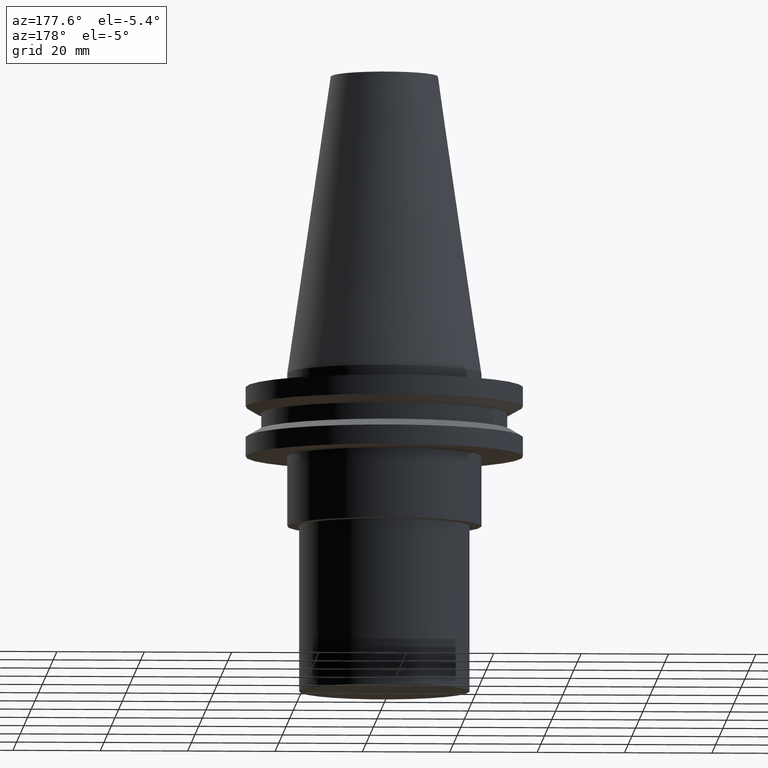
[diagram: clean part render]
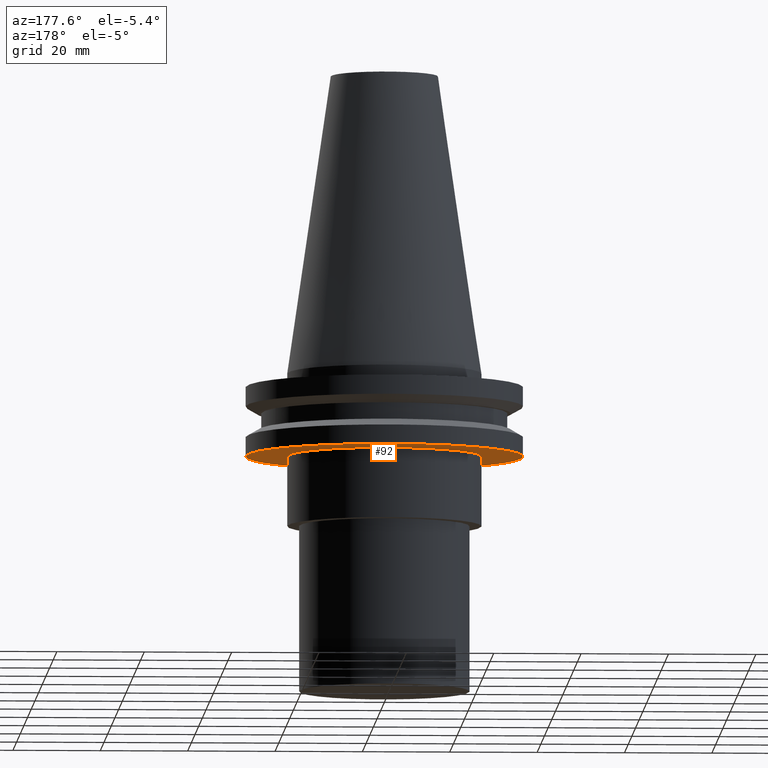
[diagram: same view with one face highlighted and labeled with its STEP entity id]
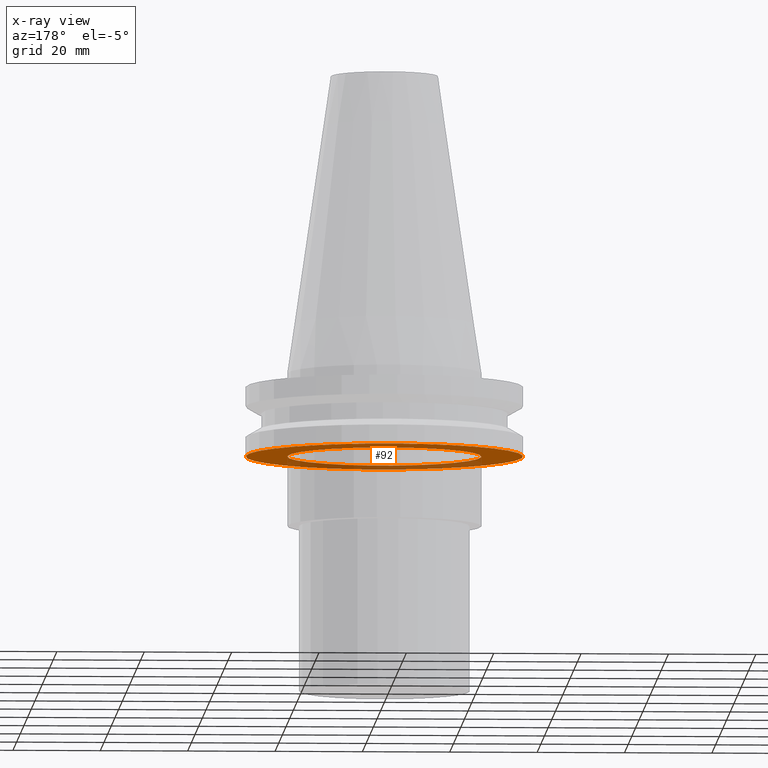
[diagram: x-ray of the same camera — body ghosted, the highlighted face saturated]
A machine part, auxiliary view. The second image highlights one B-rep face of the part: STEP entity #92.
The next image is the same camera in x-ray: the body ghosted, the highlighted face saturated — about 30% of this face is hidden behind the body in this view.
In plain terms, the highlighted planar face has unit normal (0, -0, 1).
Its self-contained STEP definition (entity closure, byte-faithful):
#11 = EDGE_CURVE ( 'NONE', #199, #199, #195, .T. ) ;
#73 = EDGE_CURVE ( 'NONE', #294, #294, #357, .T. ) ;
#92 = ADVANCED_FACE ( 'NONE', ( #336, #215 ), #246, .F. ) ;
#142 = CARTESIAN_POINT ( 'NONE',  ( 0.000000000000000000, 0.000000000000000000, -19.04999999999999716 ) ) ;
#143 = ORIENTED_EDGE ( 'NONE', *, *, #11, .T. ) ;
#181 = DIRECTION ( 'NONE',  ( 1.000000000000000000, 0.000000000000000000, 0.000000000000000000 ) ) ;
#182 = AXIS2_PLACEMENT_3D ( 'NONE', #340, #305, #181 ) ;
#195 = CIRCLE ( 'NONE', #343, 22.22500000000000142 ) ;
#199 = VERTEX_POINT ( 'NONE', #321 ) ;
#200 = EDGE_LOOP ( 'NONE', ( #390 ) ) ;
#215 = FACE_BOUND ( 'NONE', #392, .T. ) ;
#243 = DIRECTION ( 'NONE',  ( 1.000000000000000000, 0.000000000000000000, 0.000000000000000000 ) ) ;
#246 = PLANE ( 'NONE',  #182 ) ;
#252 = AXIS2_PLACEMENT_3D ( 'NONE', #362, #307, #243 ) ;
#294 = VERTEX_POINT ( 'NONE', #394 ) ;
#305 = DIRECTION ( 'NONE',  ( 0.000000000000000000, -0.000000000000000000, 1.000000000000000000 ) ) ;
#307 = DIRECTION ( 'NONE',  ( -0.000000000000000000, -0.000000000000000000, 1.000000000000000000 ) ) ;
#320 = DIRECTION ( 'NONE',  ( 1.000000000000000000, 0.000000000000000000, 0.000000000000000000 ) ) ;
#321 = CARTESIAN_POINT ( 'NONE',  ( 22.22500000000000142, 0.000000000000000000, -19.04999999999999716 ) ) ;
#336 = FACE_OUTER_BOUND ( 'NONE', #200, .T. ) ;
#340 = CARTESIAN_POINT ( 'NONE',  ( 0.000000000000000000, 31.74999999999999289, -19.04999999999999716 ) ) ;
#343 = AXIS2_PLACEMENT_3D ( 'NONE', #142, #352, #320 ) ;
#352 = DIRECTION ( 'NONE',  ( -0.000000000000000000, -0.000000000000000000, 1.000000000000000000 ) ) ;
#357 = CIRCLE ( 'NONE', #252, 31.74999999999999289 ) ;
#362 = CARTESIAN_POINT ( 'NONE',  ( 0.000000000000000000, 0.000000000000000000, -19.04999999999999716 ) ) ;
#390 = ORIENTED_EDGE ( 'NONE', *, *, #73, .F. ) ;
#392 = EDGE_LOOP ( 'NONE', ( #143 ) ) ;
#394 = CARTESIAN_POINT ( 'NONE',  ( 31.74999999999999289, 0.000000000000000000, -19.04999999999999716 ) ) ;